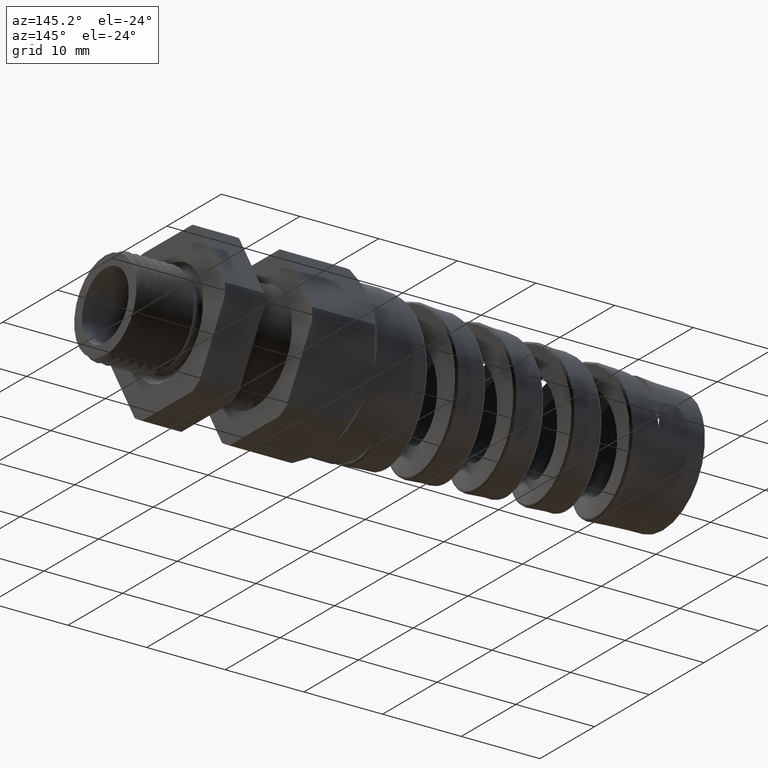
[diagram: clean part render]
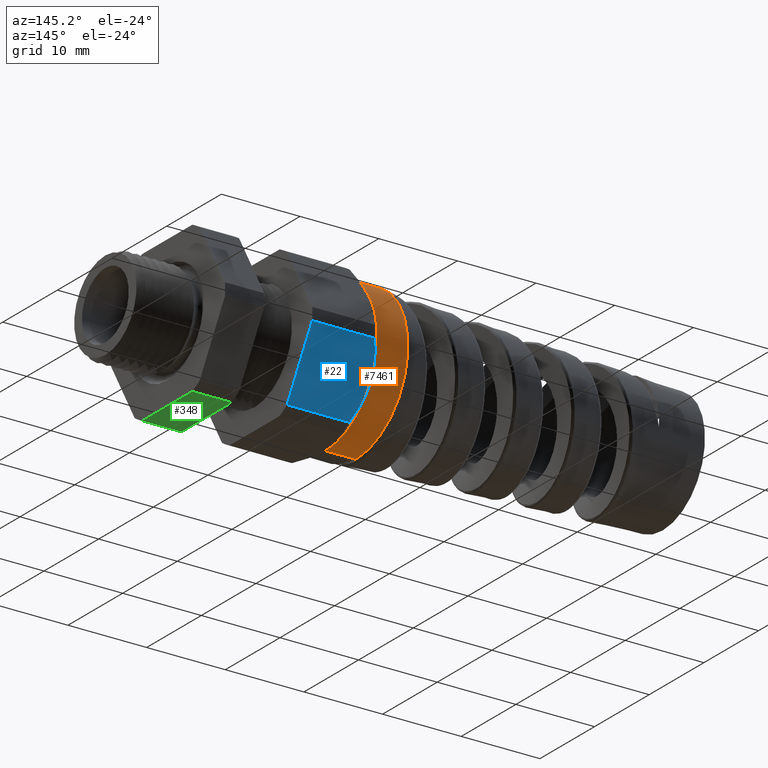
[diagram: same view with three faces highlighted in distinct colors, each labeled with its STEP entity id]
A machine part, auxiliary view with three faces highlighted in distinct colors.
Their STEP definitions:

[orange] entity #7461 — the highlighted cylindrical surface (partial cylindrical patch) has radius 9.525 mm, axis along (1, 0, 0).
#5077 = DIRECTION ( 'NONE',  ( 0.0000000000000000000, 0.0000000000000000000, -1.000000000000000000 ) ) ;
#5078 = DIRECTION ( 'NONE',  ( 1.000000000000000000, 0.0000000000000000000, 0.0000000000000000000 ) ) ;
#5079 = CARTESIAN_POINT ( 'NONE',  ( -1.101259842519685100, 0.0000000000000000000, 0.0000000000000000000 ) ) ;
#5080 = AXIS2_PLACEMENT_3D ( 'NONE', #5079, #5078, #5077 ) ;
#5081 = CIRCLE ( 'NONE', #5080, 0.3750000000000001100 ) ;
#5082 = DIRECTION ( 'NONE',  ( 1.000000000000000000, 0.0000000000000000000, 0.0000000000000000000 ) ) ;
#5083 = VECTOR ( 'NONE', #5082, 39.37007874015748100 ) ;
#5084 = CARTESIAN_POINT ( 'NONE',  ( 0.0000000000000000000, 0.0000000000000000000, -0.3750000000000001100 ) ) ;
#5088 = LINE ( 'NONE', #5084, #5083 ) ;
#5101 = CARTESIAN_POINT ( 'NONE',  ( -1.101259842519685100, 0.0000000000000000000, -0.3750000000000002200 ) ) ;
#5102 = CARTESIAN_POINT ( 'NONE',  ( -1.101259842519685100, 0.3247595264191646100, -0.1875000000000000600 ) ) ;
#5145 = CARTESIAN_POINT ( 'NONE',  ( -1.101259842519685100, 0.0000000000000000000, 0.3749999999999999400 ) ) ;
#5146 = CARTESIAN_POINT ( 'NONE',  ( -1.101259842519685100, 0.3247595264191646100, 0.1875000000000001900 ) ) ;
#5192 = DIRECTION ( 'NONE',  ( 0.0000000000000000000, 0.0000000000000000000, -1.000000000000000000 ) ) ;
#5193 = DIRECTION ( 'NONE',  ( 1.000000000000000000, 0.0000000000000000000, 0.0000000000000000000 ) ) ;
#5194 = CARTESIAN_POINT ( 'NONE',  ( 0.0000000000000000000, 0.0000000000000000000, 0.0000000000000000000 ) ) ;
#5195 = AXIS2_PLACEMENT_3D ( 'NONE', #5194, #5193, #5192 ) ;
#5196 = CYLINDRICAL_SURFACE ( 'NONE', #5195, 0.3750000000000001100 ) ;
#5197 = FACE_OUTER_BOUND ( 'NONE', #7416, .T. ) ;
#5198 = DIRECTION ( 'NONE',  ( 0.0000000000000000000, 0.0000000000000000000, 1.000000000000000000 ) ) ;
#5199 = DIRECTION ( 'NONE',  ( -1.000000000000000000, 0.0000000000000000000, 0.0000000000000000000 ) ) ;
#5200 = CARTESIAN_POINT ( 'NONE',  ( -1.254136284673775400, 0.0000000000000000000, 0.0000000000000000000 ) ) ;
#5201 = AXIS2_PLACEMENT_3D ( 'NONE', #5200, #5199, #5198 ) ;
#5202 = CIRCLE ( 'NONE', #5201, 0.3749999999999999400 ) ;
#5203 = DIRECTION ( 'NONE',  ( 1.000000000000000000, 0.0000000000000000000, 0.0000000000000000000 ) ) ;
#5204 = VECTOR ( 'NONE', #5203, 39.37007874015748100 ) ;
#5205 = CARTESIAN_POINT ( 'NONE',  ( 0.0000000000000000000, 4.592425496802576100E-017, 0.3750000000000001100 ) ) ;
#5206 = LINE ( 'NONE', #5205, #5204 ) ;
#5207 = CARTESIAN_POINT ( 'NONE',  ( -1.254136284673775400, 0.0000000000000000000, -0.3749999999999999400 ) ) ;
#5208 = CARTESIAN_POINT ( 'NONE',  ( -1.254136284673775400, 4.592425496802575500E-017, 0.3749999999999999400 ) ) ;
#5209 = DIRECTION ( 'NONE',  ( 0.0000000000000000000, 0.0000000000000000000, -1.000000000000000000 ) ) ;
#5210 = DIRECTION ( 'NONE',  ( 1.000000000000000000, 0.0000000000000000000, 0.0000000000000000000 ) ) ;
#5211 = CARTESIAN_POINT ( 'NONE',  ( -1.101259842519685100, 0.0000000000000000000, 0.0000000000000000000 ) ) ;
#5212 = AXIS2_PLACEMENT_3D ( 'NONE', #5211, #5210, #5209 ) ;
#5213 = CIRCLE ( 'NONE', #5212, 0.3750000000000001100 ) ;
#5214 = DIRECTION ( 'NONE',  ( 0.0000000000000000000, 0.0000000000000000000, -1.000000000000000000 ) ) ;
#5215 = DIRECTION ( 'NONE',  ( 1.000000000000000000, 0.0000000000000000000, 0.0000000000000000000 ) ) ;
#5216 = CARTESIAN_POINT ( 'NONE',  ( -1.101259842519685100, 0.0000000000000000000, 0.0000000000000000000 ) ) ;
#5217 = AXIS2_PLACEMENT_3D ( 'NONE', #5216, #5215, #5214 ) ;
#5218 = CIRCLE ( 'NONE', #5217, 0.3750000000000001100 ) ;
#7312 = EDGE_CURVE ( 'NONE', #7445, #7323, #5088, .T. ) ;
#7313 = ORIENTED_EDGE ( 'NONE', *, *, #7312, .F. ) ;
#7314 = EDGE_CURVE ( 'NONE', #7323, #7322, #5081, .T. ) ;
#7316 = ORIENTED_EDGE ( 'NONE', *, *, #7314, .F. ) ;
#7322 = VERTEX_POINT ( 'NONE', #5102 ) ;
#7323 = VERTEX_POINT ( 'NONE', #5101 ) ;
#7324 = ORIENTED_EDGE ( 'NONE', *, *, #7459, .F. ) ;
#7350 = ORIENTED_EDGE ( 'NONE', *, *, #7374, .F. ) ;
#7356 = VERTEX_POINT ( 'NONE', #5146 ) ;
#7374 = EDGE_CURVE ( 'NONE', #7322, #7356, #5218, .T. ) ;
#7416 = EDGE_LOOP ( 'NONE', ( #7324, #7458, #7427, #7350, #7316, #7313 ) ) ;
#7419 = VERTEX_POINT ( 'NONE', #5145 ) ;
#7427 = ORIENTED_EDGE ( 'NONE', *, *, #7428, .F. ) ;
#7428 = EDGE_CURVE ( 'NONE', #7356, #7419, #5213, .T. ) ;
#7440 = VERTEX_POINT ( 'NONE', #5208 ) ;
#7445 = VERTEX_POINT ( 'NONE', #5207 ) ;
#7455 = EDGE_CURVE ( 'NONE', #7440, #7419, #5206, .T. ) ;
#7458 = ORIENTED_EDGE ( 'NONE', *, *, #7455, .T. ) ;
#7459 = EDGE_CURVE ( 'NONE', #7440, #7445, #5202, .T. ) ;
#7461 = ADVANCED_FACE ( 'NONE', ( #5197 ), #5196, .T. ) ;

[blue] entity #22 — the highlighted planar face has unit normal (0, 0.866, -0.5).
#22 = ADVANCED_FACE ( 'NONE', ( #652 ), #651, .T. ) ;
#23 = EDGE_LOOP ( 'NONE', ( #8927, #8909, #8910, #8888, #8790 ) ) ;
#647 = DIRECTION ( 'NONE',  ( 0.0000000000000000000, 0.4999999999999998900, 0.8660254037844386000 ) ) ;
#648 = DIRECTION ( 'NONE',  ( 0.0000000000000000000, 0.8660254037844387100, -0.4999999999999999400 ) ) ;
#649 = CARTESIAN_POINT ( 'NONE',  ( 0.0000000000000000000, 0.4150909474475088500, -0.03104138925901205700 ) ) ;
#650 = AXIS2_PLACEMENT_3D ( 'NONE', #649, #648, #647 ) ;
#651 = PLANE ( 'NONE',  #650 ) ;
#652 = FACE_OUTER_BOUND ( 'NONE', #23, .T. ) ;
#5102 = CARTESIAN_POINT ( 'NONE',  ( -1.101259842519685100, 0.3247595264191646100, -0.1875000000000000600 ) ) ;
#5804 = B_SPLINE_CURVE_WITH_KNOTS ( 'NONE', 3,
 ( #5858, #5857, #5856, #5855, #5854, #5853 ),
 .UNSPECIFIED., .F., .F.,
 ( 4, 2, 4 ),
 ( 0.004709976344604658400, 0.007063225540252131500, 0.009416474735899604500 ),
 .UNSPECIFIED. ) ;
#5805 = CARTESIAN_POINT ( 'NONE',  ( -1.101259842519685100, 0.3247595264191646100, -0.1875000000000000600 ) ) ;
#5806 = CARTESIAN_POINT ( 'NONE',  ( -1.101259842519685100, 0.3169392765875836400, -0.2010450700361804400 ) ) ;
#5807 = CARTESIAN_POINT ( 'NONE',  ( -1.100255793581167400, 0.3090355397383388000, -0.2147347438287266500 ) ) ;
#5808 = CARTESIAN_POINT ( 'NONE',  ( -1.096422317636960300, 0.2935887246993245700, -0.2414894122914182100 ) ) ;
#5809 = CARTESIAN_POINT ( 'NONE',  ( -1.093600508221610900, 0.2859780998530067100, -0.2546714012025871300 ) ) ;
#5810 = CARTESIAN_POINT ( 'NONE',  ( -1.082794409625180300, 0.2634379006963008000, -0.2937121713547228300 ) ) ;
#5811 = CARTESIAN_POINT ( 'NONE',  ( -1.072483809490953000, 0.2487982124163726800, -0.3190688552625289300 ) ) ;
#5812 = CARTESIAN_POINT ( 'NONE',  ( -1.060009842519685100, 0.2344281053908204300, -0.3439586107409878200 ) ) ;
#5813 = CARTESIAN_POINT ( 'NONE',  ( -0.7469291338582678700, 0.2344281053908204300, -0.3439586107409878200 ) ) ;
#5814 = B_SPLINE_CURVE_WITH_KNOTS ( 'NONE', 3,
 ( #5812, #5811, #5810, #5809, #5808, #5807, #5806, #5805 ),
 .UNSPECIFIED., .F., .F.,
 ( 4, 2, 2, 4 ),
 ( 2.483253706007067000E-007, 0.002355112334987627000, 0.003532544339796142100, 0.004709976344604658400 ),
 .UNSPECIFIED. ) ;
#5815 = CARTESIAN_POINT ( 'NONE',  ( -1.060009842519685100, 0.2344281053908204300, -0.3439586107409878200 ) ) ;
#5816 = CARTESIAN_POINT ( 'NONE',  ( -1.060009842519685100, 0.4150909474475088500, -0.03104138925901207800 ) ) ;
#5817 = DIRECTION ( 'NONE',  ( -1.000000000000000000, 0.0000000000000000000, 0.0000000000000000000 ) ) ;
#5818 = VECTOR ( 'NONE', #5817, 39.37007874015748100 ) ;
#5819 = CARTESIAN_POINT ( 'NONE',  ( 0.0000000000000000000, 0.4150909474475088500, -0.03104138925901205700 ) ) ;
#5820 = LINE ( 'NONE', #5819, #5818 ) ;
#5821 = DIRECTION ( 'NONE',  ( 0.0000000000000000000, 0.4999999999999998900, 0.8660254037844386000 ) ) ;
#5822 = VECTOR ( 'NONE', #5821, 39.37007874015748100 ) ;
#5823 = CARTESIAN_POINT ( 'NONE',  ( -0.7469291338582678700, 0.3921345264191645800, -0.07080307684004692700 ) ) ;
#5824 = LINE ( 'NONE', #5823, #5822 ) ;
#5829 = CARTESIAN_POINT ( 'NONE',  ( -0.7469291338582678700, 0.4150909474475088500, -0.03104138925901206400 ) ) ;
#5851 = DIRECTION ( 'NONE',  ( -1.000000000000000000, 0.0000000000000000000, 0.0000000000000000000 ) ) ;
#5852 = VECTOR ( 'NONE', #5851, 39.37007874015748100 ) ;
#5853 = CARTESIAN_POINT ( 'NONE',  ( -1.060009842519685100, 0.4150909474475088500, -0.03104138925901207800 ) ) ;
#5854 = CARTESIAN_POINT ( 'NONE',  ( -1.072499265138041600, 0.4007030353962317000, -0.05596198394665670400 ) ) ;
#5855 = CARTESIAN_POINT ( 'NONE',  ( -1.082955282991276100, 0.3858321107701057100, -0.08171918095463408200 ) ) ;
#5856 = CARTESIAN_POINT ( 'NONE',  ( -1.097313831997349200, 0.3557072427410923900, -0.1338969829521925400 ) ) ;
#5857 = CARTESIAN_POINT ( 'NONE',  ( -1.101259842519684900, 0.3403893008356697100, -0.1604284365997729100 ) ) ;
#5858 = CARTESIAN_POINT ( 'NONE',  ( -1.101259842519685100, 0.3247595264191646100, -0.1875000000000000600 ) ) ;
#5859 = CARTESIAN_POINT ( 'NONE',  ( 0.0000000000000000000, 0.2344281053908204300, -0.3439586107409878200 ) ) ;
#5860 = LINE ( 'NONE', #5859, #5852 ) ;
#7322 = VERTEX_POINT ( 'NONE', #5102 ) ;
#8790 = ORIENTED_EDGE ( 'NONE', *, *, #8881, .F. ) ;
#8793 = VERTEX_POINT ( 'NONE', #5829 ) ;
#8881 = EDGE_CURVE ( 'NONE', #8907, #8793, #5824, .T. ) ;
#8887 = EDGE_CURVE ( 'NONE', #8793, #8889, #5820, .T. ) ;
#8888 = ORIENTED_EDGE ( 'NONE', *, *, #8887, .F. ) ;
#8889 = VERTEX_POINT ( 'NONE', #5816 ) ;
#8902 = EDGE_CURVE ( 'NONE', #8908, #7322, #5814, .T. ) ;
#8907 = VERTEX_POINT ( 'NONE', #5813 ) ;
#8908 = VERTEX_POINT ( 'NONE', #5815 ) ;
#8909 = ORIENTED_EDGE ( 'NONE', *, *, #8902, .T. ) ;
#8910 = ORIENTED_EDGE ( 'NONE', *, *, #8911, .T. ) ;
#8911 = EDGE_CURVE ( 'NONE', #7322, #8889, #5804, .T. ) ;
#8927 = ORIENTED_EDGE ( 'NONE', *, *, #8928, .T. ) ;
#8928 = EDGE_CURVE ( 'NONE', #8907, #8908, #5860, .T. ) ;

[green] entity #348 — the highlighted planar face has unit normal (0, 0, -1).
#209 = VERTEX_POINT ( 'NONE', #1065 ) ;
#211 = EDGE_CURVE ( 'NONE', #209, #212, #1064, .T. ) ;
#212 = VERTEX_POINT ( 'NONE', #1060 ) ;
#298 = EDGE_LOOP ( 'NONE', ( #349, #350, #360, #362 ) ) ;
#346 = EDGE_CURVE ( 'NONE', #8777, #212, #1253, .T. ) ;
#348 = ADVANCED_FACE ( 'NONE', ( #1249 ), #1248, .T. ) ;
#349 = ORIENTED_EDGE ( 'NONE', *, *, #346, .T. ) ;
#350 = ORIENTED_EDGE ( 'NONE', *, *, #211, .F. ) ;
#360 = ORIENTED_EDGE ( 'NONE', *, *, #361, .F. ) ;
#361 = EDGE_CURVE ( 'NONE', #8778, #209, #1292, .T. ) ;
#362 = ORIENTED_EDGE ( 'NONE', *, *, #8828, .F. ) ;
#1060 = CARTESIAN_POINT ( 'NONE',  ( -0.5068503937007874400, -0.1806628420566881700, -0.3750000000000002200 ) ) ;
#1061 = DIRECTION ( 'NONE',  ( 0.0000000000000000000, -1.000000000000000000, 0.0000000000000000000 ) ) ;
#1062 = VECTOR ( 'NONE', #1061, 39.37007874015748100 ) ;
#1063 = CARTESIAN_POINT ( 'NONE',  ( -0.5068503937007874400, 0.7500000000000002200, -0.3750000000000002200 ) ) ;
#1064 = LINE ( 'NONE', #1063, #1062 ) ;
#1065 = CARTESIAN_POINT ( 'NONE',  ( -0.5068503937007874400, 0.1806628420566880900, -0.3750000000000002200 ) ) ;
#1245 = DIRECTION ( 'NONE',  ( 0.0000000000000000000, 0.0000000000000000000, -1.000000000000000000 ) ) ;
#1246 = CARTESIAN_POINT ( 'NONE',  ( 0.0000000000000000000, 0.1806628420566881700, -0.3750000000000002200 ) ) ;
#1247 = AXIS2_PLACEMENT_3D ( 'NONE', #1246, #1245, #1309 ) ;
#1248 = PLANE ( 'NONE',  #1247 ) ;
#1249 = FACE_OUTER_BOUND ( 'NONE', #298, .T. ) ;
#1250 = DIRECTION ( 'NONE',  ( -1.000000000000000000, 0.0000000000000000000, 0.0000000000000000000 ) ) ;
#1251 = VECTOR ( 'NONE', #1250, 39.37007874015748100 ) ;
#1252 = CARTESIAN_POINT ( 'NONE',  ( 0.0000000000000000000, -0.1806628420566881700, -0.3750000000000002200 ) ) ;
#1253 = LINE ( 'NONE', #1252, #1251 ) ;
#1289 = DIRECTION ( 'NONE',  ( -1.000000000000000000, 0.0000000000000000000, 0.0000000000000000000 ) ) ;
#1290 = VECTOR ( 'NONE', #1289, 39.37007874015748100 ) ;
#1291 = CARTESIAN_POINT ( 'NONE',  ( 0.0000000000000000000, 0.1806628420566880900, -0.3750000000000002200 ) ) ;
#1292 = LINE ( 'NONE', #1291, #1290 ) ;
#1309 = DIRECTION ( 'NONE',  ( -1.000000000000000000, 0.0000000000000000000, 0.0000000000000000000 ) ) ;
#5773 = CARTESIAN_POINT ( 'NONE',  ( -0.3100000000000000000, 0.1806628420566880900, -0.3750000000000002200 ) ) ;
#5774 = CARTESIAN_POINT ( 'NONE',  ( -0.3100000000000000000, -0.1806628420566881700, -0.3750000000000002200 ) ) ;
#5825 = DIRECTION ( 'NONE',  ( 0.0000000000000000000, 1.000000000000000000, 0.0000000000000000000 ) ) ;
#5826 = VECTOR ( 'NONE', #5825, 39.37007874015748100 ) ;
#5827 = CARTESIAN_POINT ( 'NONE',  ( -0.3100000000000000000, 0.7500000000000002200, -0.3750000000000002200 ) ) ;
#5828 = LINE ( 'NONE', #5827, #5826 ) ;
#8777 = VERTEX_POINT ( 'NONE', #5774 ) ;
#8778 = VERTEX_POINT ( 'NONE', #5773 ) ;
#8828 = EDGE_CURVE ( 'NONE', #8777, #8778, #5828, .T. ) ;